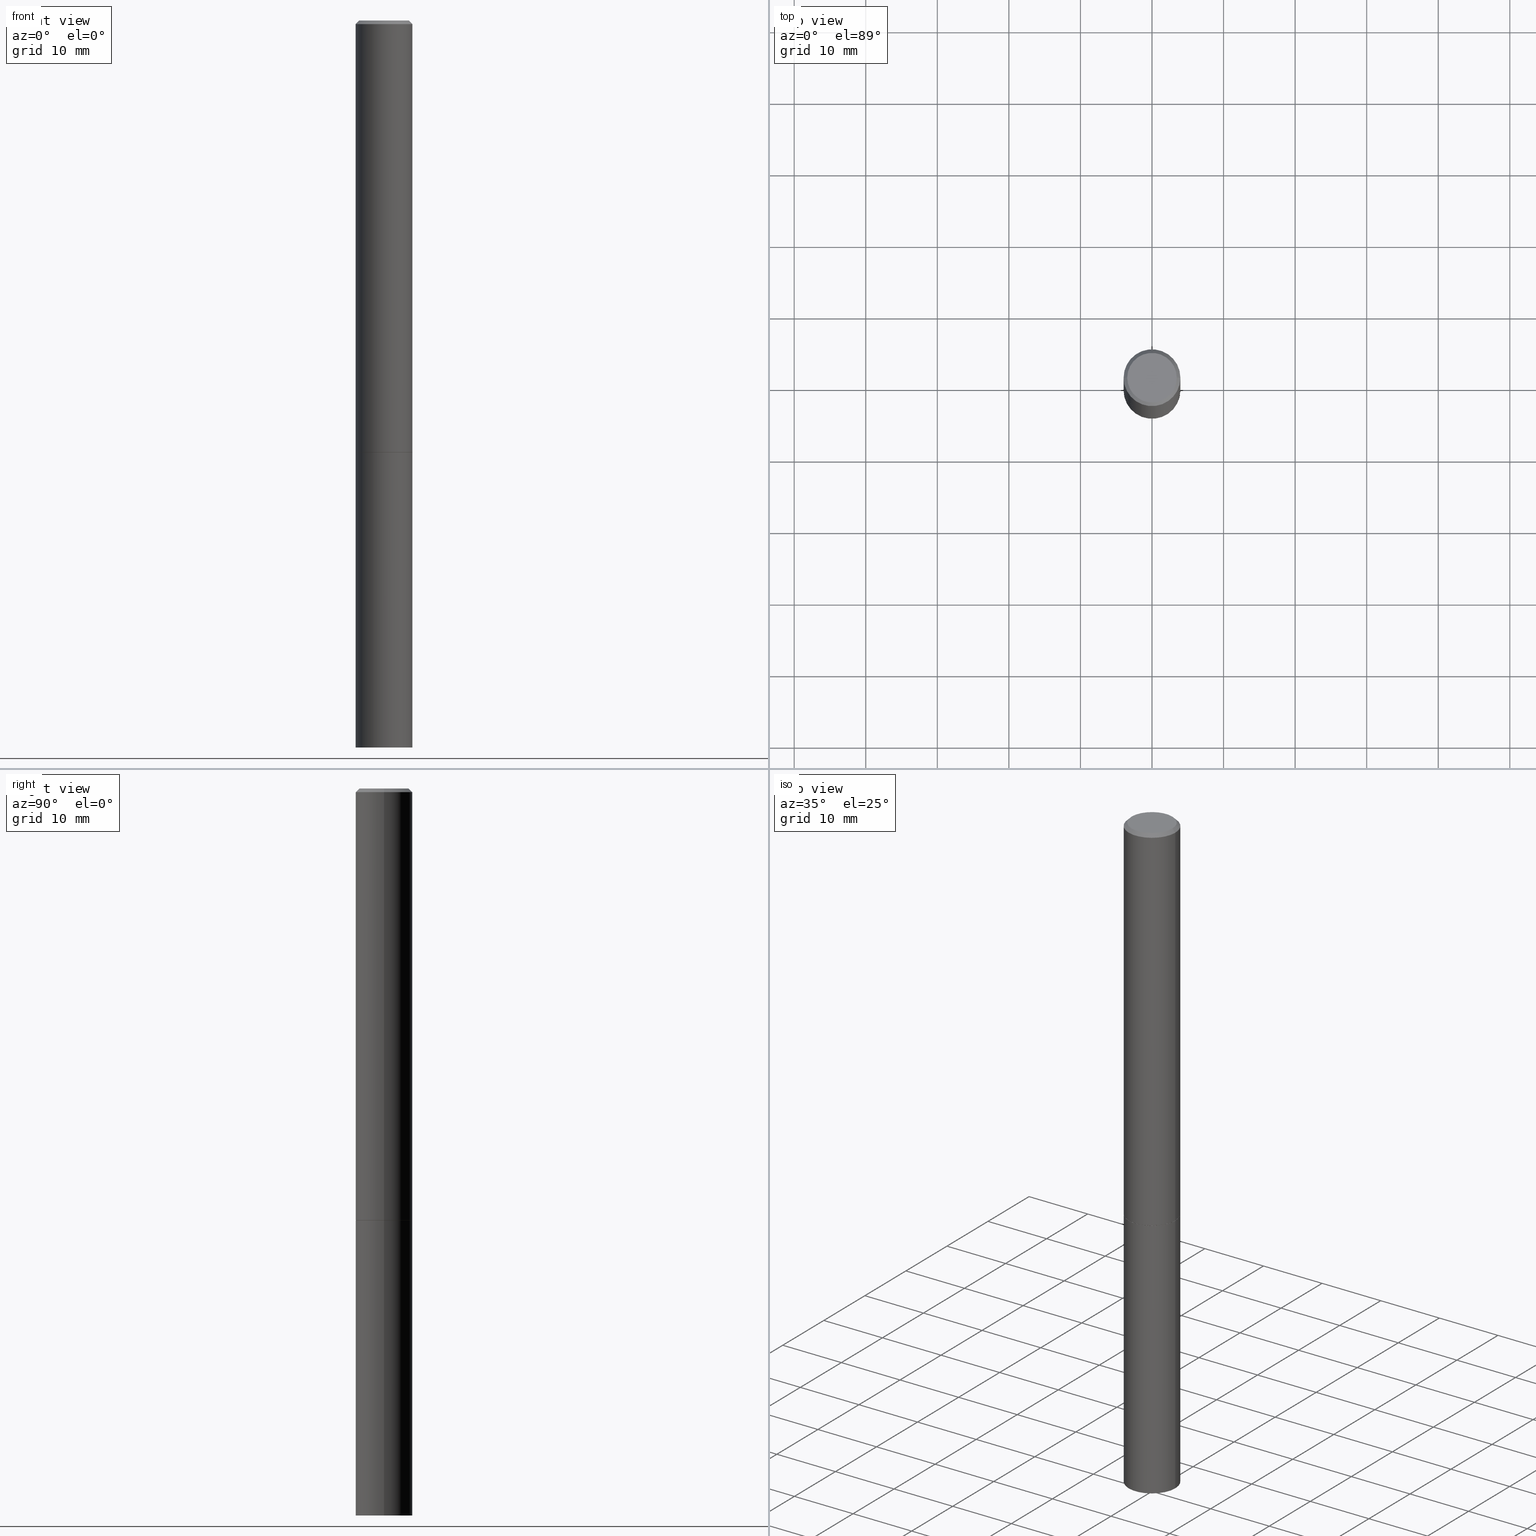
[diagram: canonical four-view strip — front | top / right | iso, engineering-drawing reading convention]
A machine part, canonical four-view strip (front | top / right | iso — engineering-drawing reading convention). The complete STEP part file that produces these views, byte-faithful:
ISO-10303-21;
HEADER;
FILE_DESCRIPTION (( 'STEP AP203' ),
    '1' );
FILE_NAME ('33125.STEP',
    '2023-03-21T20:39:28',
    ( '' ),
    ( '' ),
    'SwSTEP 2.0',
    'SolidWorks 2022',
    '' );
FILE_SCHEMA (( 'CONFIG_CONTROL_DESIGN' ));
ENDSEC;

DATA;
#1 = DIRECTION ( 'NONE',  ( 0.9986295347545742773, -7.033825938272001856E-15, -0.05233595624293820026 ) ) ;
#2 = CARTESIAN_POINT ( 'NONE',  ( 0.1562499999999996947, -1.141782438928662738E-15, -0.02000000000000003164 ) ) ;
#3 = PERSON_AND_ORGANIZATION_ROLE ( 'classification_officer' ) ;
#4 = AXIS2_PLACEMENT_3D ( 'NONE', #203, #104, #264 ) ;
#5 = ORIENTED_EDGE ( 'NONE', *, *, #388, .F. ) ;
#6 = COORDINATED_UNIVERSAL_TIME_OFFSET ( 5, 0, .BEHIND. ) ;
#7 = CARTESIAN_POINT ( 'NONE',  ( 0.1552499999999999991, -9.376373135463264066E-15, -2.375000000000000000 ) ) ;
#8 = DATE_TIME_ROLE ( 'creation_date' ) ;
#9 = ORIENTED_EDGE ( 'NONE', *, *, #179, .F. ) ;
#10 = DIRECTION ( 'NONE',  ( -2.445468806185136597E-29, 3.491481338843145583E-15, 1.000000000000000000 ) ) ;
#11 = DATE_TIME_ROLE ( 'classification_date' ) ;
#12 = AXIS2_PLACEMENT_3D ( 'NONE', #43, #97, #222 ) ;
#13 = CYLINDRICAL_SURFACE ( 'NONE', #211, 0.1562500000000000000 ) ;
#14 = EDGE_CURVE ( 'NONE', #378, #175, #366, .T. ) ;
#15 = ORIENTED_EDGE ( 'NONE', *, *, #219, .T. ) ;
#16 = DIRECTION ( 'NONE',  ( 1.000000000000000000, -6.982962677686266711E-15, 4.876176775795936353E-29 ) ) ;
#17 = PRODUCT ( '33125', '33125', '', ( #160 ) ) ;
#18 = CARTESIAN_POINT ( 'NONE',  ( 0.000000000000000000, 0.000000000000000000, 0.000000000000000000 ) ) ;
#19 = VECTOR ( 'NONE', #342, 39.37007874015748854 ) ;
#20 = ORIENTED_EDGE ( 'NONE', *, *, #301, .T. ) ;
#21 = CARTESIAN_POINT ( 'NONE',  ( 5.807988414689699417E-29, -8.292268179752470118E-15, -2.375000000000000000 ) ) ;
#22 = VECTOR ( 'NONE', #369, 39.37007874015748143 ) ;
#23 = AXIS2_PLACEMENT_3D ( 'NONE', #316, #41, #100 ) ;
#24 = EDGE_CURVE ( 'NONE', #290, #345, #389, .T. ) ;
#25 = DIRECTION ( 'NONE',  ( -0.9986295347545742773, 6.790662755453662155E-15, -0.05233595624293820026 ) ) ;
#26 = EDGE_LOOP ( 'NONE', ( #105, #107, #322 ) ) ;
#27 = LENGTH_MEASURE_WITH_UNIT ( LENGTH_MEASURE( 0.02539999999999999897 ), #181 );
#28 = DIRECTION ( 'NONE',  ( -2.445468806185136597E-29, 3.491481338843145583E-15, 1.000000000000000000 ) ) ;
#29 = LINE ( 'NONE', #7, #19 ) ;
#30 = VECTOR ( 'NONE', #1, 39.37007874015748854 ) ;
#31 = CARTESIAN_POINT ( 'NONE',  ( 1.060401494324985939E-27, -1.513972298380150215E-13, -43.36189002464450226 ) ) ;
#32 = MANIFOLD_SOLID_BREP ( 'Body-Move/Copy2[2]', #140 ) ;
#33 = ADVANCED_FACE ( 'NONE', ( #67 ), #225, .T. ) ;
#34 = DIRECTION ( 'NONE',  ( 1.000000000000000000, -6.982962677686262766E-15, 0.000000000000000000 ) ) ;
#35 = DIRECTION ( 'NONE',  ( 1.000000000000000000, -6.982962677686268288E-15, 0.000000000000000000 ) ) ;
#36 = APPLICATION_CONTEXT ( 'configuration controlled 3d designs of mechanical parts and assemblies' ) ;
#37 = APPROVAL_ROLE ( '' ) ;
#38 = ORIENTED_EDGE ( 'NONE', *, *, #214, .F. ) ;
#39 = DATE_AND_TIME ( #251, #361 ) ;
#40 = AXIS2_PLACEMENT_3D ( 'NONE', #31, #313, #91 ) ;
#41 = DIRECTION ( 'NONE',  ( 2.445468806185136597E-29, -3.491481338843145583E-15, -1.000000000000000000 ) ) ;
#42 = DIRECTION ( 'NONE',  ( 1.000000000000000000, 0.000000000000000000, 0.000000000000000000 ) ) ;
#43 = CARTESIAN_POINT ( 'NONE',  ( 0.000000000000000000, 0.000000000000000000, 0.000000000000000000 ) ) ;
#44 = CARTESIAN_POINT ( 'NONE',  ( 0.1562500000000000000, -9.379864616802105495E-15, -2.373999999999999666 ) ) ;
#45 = DIRECTION ( 'NONE',  ( -2.445468806185136597E-29, 3.491481338843145583E-15, 1.000000000000000000 ) ) ;
#46 = CONICAL_SURFACE ( 'NONE', #304, 0.1562499999999996947, 0.7853981633974473908 ) ;
#47 = VERTEX_POINT ( 'NONE', #224 ) ;
#48 = DIRECTION ( 'NONE',  ( 2.445468806185136597E-29, -3.491481338843145583E-15, -1.000000000000000000 ) ) ;
#49 = ADVANCED_FACE ( 'NONE', ( #348 ), #162, .F. ) ;
#50 = DIRECTION ( 'NONE',  ( 1.000000000000000000, -6.982962677686265922E-15, 4.876176775795935793E-29 ) ) ;
#51 = CC_DESIGN_PERSON_AND_ORGANIZATION_ASSIGNMENT ( #194, #350, ( #17 ) ) ;
#52 = DIRECTION ( 'NONE',  ( 1.000000000000000000, -6.982962677686262766E-15, 0.000000000000000000 ) ) ;
#53 = EDGE_CURVE ( 'NONE', #360, #208, #201, .T. ) ;
#54 = CONICAL_SURFACE ( 'NONE', #149, 751.2258538476485228, 1.518436449235072372 ) ;
#55 = VERTEX_POINT ( 'NONE', #124 ) ;
#56 = FACE_OUTER_BOUND ( 'NONE', #26, .T. ) ;
#57 = EDGE_LOOP ( 'NONE', ( #367, #336, #303, #262 ) ) ;
#58 = EDGE_CURVE ( 'NONE', #290, #137, #128, .T. ) ;
#59 = DIRECTION ( 'NONE',  ( -2.445468806185136877E-29, 3.491481338843145188E-15, 1.000000000000000000 ) ) ;
#60 = CARTESIAN_POINT ( 'NONE',  ( 0.000000000000000000, 0.000000000000000000, 0.000000000000000000 ) ) ;
#61 = ORIENTED_EDGE ( 'NONE', *, *, #154, .F. ) ;
#62 = EDGE_CURVE ( 'NONE', #175, #137, #186, .T. ) ;
#63 = DIRECTION ( 'NONE',  ( 1.000000000000000000, -6.982962677686268288E-15, 0.000000000000000000 ) ) ;
#64 = FACE_OUTER_BOUND ( 'NONE', #155, .T. ) ;
#65 = CALENDAR_DATE ( 2023, 21, 3 ) ;
#66 = PERSON_AND_ORGANIZATION ( #358, #151 ) ;
#67 = FACE_OUTER_BOUND ( 'NONE', #57, .T. ) ;
#68 = COORDINATED_UNIVERSAL_TIME_OFFSET ( 5, 0, .BEHIND. ) ;
#69 = CC_DESIGN_PERSON_AND_ORGANIZATION_ASSIGNMENT ( #282, #370, ( #311 ) ) ;
#70 =( GEOMETRIC_REPRESENTATION_CONTEXT ( 3 ) GLOBAL_UNCERTAINTY_ASSIGNED_CONTEXT ( ( #75 ) ) GLOBAL_UNIT_ASSIGNED_CONTEXT ( ( #148, #274, #275 ) ) REPRESENTATION_CONTEXT ( 'NONE', 'WORKASPACE' ) );
#71 = CYLINDRICAL_SURFACE ( 'NONE', #83, 0.1562499999999998612 ) ;
#72 = CALENDAR_DATE ( 2023, 21, 3 ) ;
#73 = ORIENTED_EDGE ( 'NONE', *, *, #184, .T. ) ;
#74 = CARTESIAN_POINT ( 'NONE',  ( 9.762530313242942040E-29, -1.393636032687536205E-14, -3.991811284487025713 ) ) ;
#75 = UNCERTAINTY_MEASURE_WITH_UNIT (LENGTH_MEASURE( 1.000000000000000082E-05 ), #148, 'distance_accuracy_value', 'NONE');
#76 = FACE_OUTER_BOUND ( 'NONE', #331, .T. ) ;
#77 = AXIS2_PLACEMENT_3D ( 'NONE', #390, #247, #339 ) ;
#78 = FACE_OUTER_BOUND ( 'NONE', #273, .T. ) ;
#79 = AXIS2_PLACEMENT_3D ( 'NONE', #153, #333, #63 ) ;
#80 = CC_DESIGN_PERSON_AND_ORGANIZATION_ASSIGNMENT ( #126, #317, ( #185 ) ) ;
#81 = CARTESIAN_POINT ( 'NONE',  ( 4.890937612370280165E-31, -6.982962677686301470E-17, -0.02000000000000003164 ) ) ;
#82 = DIRECTION ( 'NONE',  ( 2.438088387897960049E-29, -3.491481338843145188E-15, -1.000000000000000000 ) ) ;
#83 = AXIS2_PLACEMENT_3D ( 'NONE', #327, #325, #291 ) ;
#84 = APPROVAL_PERSON_ORGANIZATION ( #223, #292, #37 ) ;
#85 = DIRECTION ( 'NONE',  ( -1.000000000000000000, 6.982962677686265922E-15, -4.876176775795935793E-29 ) ) ;
#86 = ORIENTED_EDGE ( 'NONE', *, *, #326, .F. ) ;
#87 = ORIENTED_EDGE ( 'NONE', *, *, #334, .T. ) ;
#88 = CARTESIAN_POINT ( 'NONE',  ( 4.890937612370280165E-31, -6.982962677686301470E-17, -0.02000000000000003164 ) ) ;
#89 = DIRECTION ( 'NONE',  ( 1.000000000000000000, -6.982962677686266711E-15, 4.876176775795936353E-29 ) ) ;
#90 = VERTEX_POINT ( 'NONE', #346 ) ;
#91 = DIRECTION ( 'NONE',  ( -1.000000000000000000, 6.982962677686266711E-15, 0.000000000000000000 ) ) ;
#92 = EDGE_CURVE ( 'NONE', #228, #175, #29, .T. ) ;
#93 = CARTESIAN_POINT ( 'NONE',  ( 0.1562499999999998612, -1.091087918388478187E-15, 7.619026212181143371E-30 ) ) ;
#94 = CIRCLE ( 'NONE', #79, 0.1552499999999999991 ) ;
#95 = DATE_AND_TIME ( #65, #250 ) ;
#96 = SECURITY_CLASSIFICATION_LEVEL ( 'unclassified' ) ;
#97 = DIRECTION ( 'NONE',  ( -2.445468806185136597E-29, 3.491481338843145583E-15, 1.000000000000000000 ) ) ;
#98 = ADVANCED_FACE ( 'NONE', ( #64 ), #46, .T. ) ;
#99 = APPROVAL_DATE_TIME ( #372, #265 ) ;
#100 = DIRECTION ( 'NONE',  ( -1.000000000000000000, 6.982962677686267499E-15, 0.000000000000000000 ) ) ;
#101 = APPROVAL_ROLE ( '' ) ;
#102 = VECTOR ( 'NONE', #253, 39.37007874015748143 ) ;
#103 = EDGE_LOOP ( 'NONE', ( #73, #159, #9, #252 ) ) ;
#104 = DIRECTION ( 'NONE',  ( -2.445468806185136597E-29, 3.491481338843145583E-15, 1.000000000000000000 ) ) ;
#105 = ORIENTED_EDGE ( 'NONE', *, *, #375, .F. ) ;
#106 = DIRECTION ( 'NONE',  ( 1.000000000000000000, -6.982962677686266711E-15, 4.876176775795936353E-29 ) ) ;
#107 = ORIENTED_EDGE ( 'NONE', *, *, #326, .T. ) ;
#108 = DIRECTION ( 'NONE',  ( -0.7071067811865469066, 2.468850131082249961E-15, -0.7071067811865482389 ) ) ;
#109 = APPROVAL_PERSON_ORGANIZATION ( #258, #312, #101 ) ;
#110 = LINE ( 'NONE', #354, #377 ) ;
#111 = AXIS2_PLACEMENT_3D ( 'NONE', #298, #82, #85 ) ;
#112 = CYLINDRICAL_SURFACE ( 'NONE', #166, 0.1562500000000000000 ) ;
#113 = ORIENTED_EDGE ( 'NONE', *, *, #261, .T. ) ;
#114 = CARTESIAN_POINT ( 'NONE',  ( 9.781875224740546387E-29, -1.396592535537258233E-14, -4.000000000000000000 ) ) ;
#115 = ORIENTED_EDGE ( 'NONE', *, *, #179, .T. ) ;
#116 = APPLICATION_PROTOCOL_DEFINITION ( 'international standard', 'config_control_design', 1994, #191 ) ;
#117 = ADVANCED_FACE ( 'NONE', ( #230 ), #54, .F. ) ;
#118 = AXIS2_PLACEMENT_3D ( 'NONE', #386, #198, #263 ) ;
#119 = ADVANCED_FACE ( 'NONE', ( #199 ), #112, .T. ) ;
#120 = VECTOR ( 'NONE', #59, 39.37007874015748143 ) ;
#121 = FACE_OUTER_BOUND ( 'NONE', #306, .T. ) ;
#122 = CC_DESIGN_DATE_AND_TIME_ASSIGNMENT ( #193, #11, ( #257 ) ) ;
#123 = DIRECTION ( 'NONE',  ( 1.000000000000000000, -6.982962677686262766E-15, 0.000000000000000000 ) ) ;
#124 = CARTESIAN_POINT ( 'NONE',  ( -0.1562500000000000000, -1.001887374293736968E-14, -2.375000000000000000 ) ) ;
#125 = CIRCLE ( 'NONE', #156, 0.1562499999999996947 ) ;
#126 = PERSON_AND_ORGANIZATION ( #358, #151 ) ;
#127 = EDGE_LOOP ( 'NONE', ( #5, #174, #387, #173 ) ) ;
#128 = LINE ( 'NONE', #2, #22 ) ;
#129 = ADVANCED_FACE ( 'NONE', ( #76 ), #294, .F. ) ;
#130 = PERSON_AND_ORGANIZATION ( #358, #151 ) ;
#131 = COORDINATED_UNIVERSAL_TIME_OFFSET ( 5, 0, .BEHIND. ) ;
#132 = ORIENTED_EDGE ( 'NONE', *, *, #24, .F. ) ;
#133 = DIRECTION ( 'NONE',  ( -2.445468806185136597E-29, 3.491481338843145583E-15, 1.000000000000000000 ) ) ;
#134 = AXIS2_PLACEMENT_3D ( 'NONE', #81, #170, #353 ) ;
#135 = CONICAL_SURFACE ( 'NONE', #324, 0.1552499999999999991, 0.7853981633974141952 ) ;
#136 = FACE_OUTER_BOUND ( 'NONE', #164, .T. ) ;
#137 = VERTEX_POINT ( 'NONE', #256 ) ;
#138 = CARTESIAN_POINT ( 'NONE',  ( 5.805542945883513814E-29, -8.288776698413627111E-15, -2.373999999999999666 ) ) ;
#139 = DIRECTION ( 'NONE',  ( -0.7071067811865232589, 7.493145998870265808E-15, 0.7071067811865715536 ) ) ;
#140 = CLOSED_SHELL ( 'NONE', ( #320, #145, #98, #33, #161, #245, #129, #150 ) ) ;
#141 = VERTEX_POINT ( 'NONE', #165 ) ;
#142 = ORIENTED_EDGE ( 'NONE', *, *, #154, .T. ) ;
#143 = CARTESIAN_POINT ( 'NONE',  ( 9.514286648347515911E-16, 0.1362499999999997047, -4.757143324173775705E-16 ) ) ;
#144 = VECTOR ( 'NONE', #25, 39.37007874015748854 ) ;
#145 = ADVANCED_FACE ( 'NONE', ( #284 ), #237, .T. ) ;
#146 = CARTESIAN_POINT ( 'NONE',  ( -0.1562500000000000000, -3.069080137970085114E-15, -2.373999999999999666 ) ) ;
#147 = ORIENTED_EDGE ( 'NONE', *, *, #169, .F. ) ;
#148 =( CONVERSION_BASED_UNIT ( 'INCH', #27 ) LENGTH_UNIT ( ) NAMED_UNIT ( #302 ) );
#149 = AXIS2_PLACEMENT_3D ( 'NONE', #163, #48, #323 ) ;
#150 = ADVANCED_FACE ( 'NONE', ( #321 ), #234, .F. ) ;
#151 = ORGANIZATION ( 'UNSPECIFIED', 'UNSPECIFIED', '' ) ;
#152 = DIRECTION ( 'NONE',  ( -2.445468806185136597E-29, 3.491481338843145583E-15, 1.000000000000000000 ) ) ;
#153 = CARTESIAN_POINT ( 'NONE',  ( 5.807988414689699417E-29, -8.292268179752470118E-15, -2.375000000000000000 ) ) ;
#154 = EDGE_CURVE ( 'NONE', #47, #378, #110, .T. ) ;
#155 = EDGE_LOOP ( 'NONE', ( #132, #269, #115, #197 ) ) ;
#156 = AXIS2_PLACEMENT_3D ( 'NONE', #88, #305, #210 ) ;
#157 = PERSON_AND_ORGANIZATION ( #358, #151 ) ;
#158 = CC_DESIGN_PERSON_AND_ORGANIZATION_ASSIGNMENT ( #157, #3, ( #257 ) ) ;
#159 = ORIENTED_EDGE ( 'NONE', *, *, #388, .T. ) ;
#160 = MECHANICAL_CONTEXT ( 'NONE', #191, 'mechanical' ) ;
#161 = ADVANCED_FACE ( 'NONE', ( #379 ), #71, .T. ) ;
#162 = PLANE ( 'NONE',  #111 ) ;
#163 = CARTESIAN_POINT ( 'NONE',  ( 1.060401494324985939E-27, -1.513972298380150215E-13, -43.36189002464450226 ) ) ;
#164 = EDGE_LOOP ( 'NONE', ( #61, #87, #286, #213 ) ) ;
#165 = CARTESIAN_POINT ( 'NONE',  ( 0.1562500000000000000, -9.383356098140948502E-15, -2.375000000000000000 ) ) ;
#166 = AXIS2_PLACEMENT_3D ( 'NONE', #382, #168, #106 ) ;
#167 = VERTEX_POINT ( 'NONE', #74 ) ;
#168 = DIRECTION ( 'NONE',  ( -2.445468806185136597E-29, 3.491481338843145583E-15, 1.000000000000000000 ) ) ;
#169 = EDGE_CURVE ( 'NONE', #208, #55, #357, .T. ) ;
#170 = DIRECTION ( 'NONE',  ( -2.445468806185136597E-29, 3.491481338843145583E-15, 1.000000000000000000 ) ) ;
#171 = DIRECTION ( 'NONE',  ( 2.438088387897960049E-29, -3.491481338843145188E-15, -1.000000000000000000 ) ) ;
#172 = CC_DESIGN_APPROVAL ( #265, ( #311 ) ) ;
#173 = ORIENTED_EDGE ( 'NONE', *, *, #296, .F. ) ;
#174 = ORIENTED_EDGE ( 'NONE', *, *, #14, .T. ) ;
#175 = VERTEX_POINT ( 'NONE', #44 ) ;
#176 = PRODUCT_RELATED_PRODUCT_CATEGORY ( 'detail', '', ( #17 ) ) ;
#177 = LINE ( 'NONE', #240, #144 ) ;
#178 = CIRCLE ( 'NONE', #356, 0.1562500000000000000 ) ;
#179 = EDGE_CURVE ( 'NONE', #137, #90, #295, .T. ) ;
#180 = ORIENTED_EDGE ( 'NONE', *, *, #92, .F. ) ;
#181 =( LENGTH_UNIT ( ) NAMED_UNIT ( * ) SI_UNIT ( $, .METRE. ) );
#182 = ORIENTED_EDGE ( 'NONE', *, *, #385, .T. ) ;
#183 = CARTESIAN_POINT ( 'NONE',  ( -0.1362499999999997047, 9.863434782231830429E-16, -6.775751096333125871E-30 ) ) ;
#184 = EDGE_CURVE ( 'NONE', #175, #378, #249, .T. ) ;
#185 = PRODUCT_DEFINITION ( 'UNKNOWN', '', #311, #233 ) ;
#186 = LINE ( 'NONE', #93, #102 ) ;
#187 = DIRECTION ( 'NONE',  ( 1.000000000000000000, -6.982962677686262766E-15, 0.000000000000000000 ) ) ;
#188 = CARTESIAN_POINT ( 'NONE',  ( 9.742810946720133683E-19, -1.393733460796993625E-14, -3.991811284487025713 ) ) ;
#189 = ADVANCED_BREP_SHAPE_REPRESENTATION ( '33125', ( #299, #32, #242 ), #70 ) ;
#190 = VECTOR ( 'NONE', #108, 39.37007874015748143 ) ;
#191 = APPLICATION_CONTEXT ( 'configuration controlled 3d designs of mechanical parts and assemblies' ) ;
#192 = CARTESIAN_POINT ( 'NONE',  ( 0.1562499999999997224, -1.503787816752438098E-14, -4.000000000000000000 ) ) ;
#193 = DATE_AND_TIME ( #196, #277 ) ;
#194 = PERSON_AND_ORGANIZATION ( #358, #151 ) ;
#195 = ORIENTED_EDGE ( 'NONE', *, *, #385, .F. ) ;
#196 = CALENDAR_DATE ( 2023, 21, 3 ) ;
#197 = ORIENTED_EDGE ( 'NONE', *, *, #238, .F. ) ;
#198 = DIRECTION ( 'NONE',  ( -2.445468806185136597E-29, 3.491481338843145583E-15, 1.000000000000000000 ) ) ;
#199 = FACE_OUTER_BOUND ( 'NONE', #283, .T. ) ;
#200 = LINE ( 'NONE', #384, #190 ) ;
#201 = CIRCLE ( 'NONE', #205, 0.1562500000000000000 ) ;
#202 = CC_DESIGN_APPROVAL ( #292, ( #257 ) ) ;
#203 = CARTESIAN_POINT ( 'NONE',  ( 5.807988414689699417E-29, -8.292268179752470118E-15, -2.375000000000000000 ) ) ;
#204 = DIRECTION ( 'NONE',  ( -1.000000000000000000, 6.982962677686267499E-15, 0.000000000000000000 ) ) ;
#205 = AXIS2_PLACEMENT_3D ( 'NONE', #114, #307, #34 ) ;
#206 = ORIENTED_EDGE ( 'NONE', *, *, #334, .F. ) ;
#207 = CC_DESIGN_DATE_AND_TIME_ASSIGNMENT ( #39, #8, ( #185 ) ) ;
#208 = VERTEX_POINT ( 'NONE', #383 ) ;
#209 = ORIENTED_EDGE ( 'NONE', *, *, #169, .T. ) ;
#210 = DIRECTION ( 'NONE',  ( 1.000000000000000000, -6.982962677686267499E-15, 0.000000000000000000 ) ) ;
#211 = AXIS2_PLACEMENT_3D ( 'NONE', #259, #152, #89 ) ;
#212 = CC_DESIGN_APPROVAL ( #312, ( #185 ) ) ;
#213 = ORIENTED_EDGE ( 'NONE', *, *, #14, .F. ) ;
#214 = EDGE_CURVE ( 'NONE', #141, #55, #359, .T. ) ;
#215 = DIRECTION ( 'NONE',  ( 1.000000000000000000, -6.982962677686266711E-15, 4.876176775795936353E-29 ) ) ;
#216 = ORIENTED_EDGE ( 'NONE', *, *, #260, .T. ) ;
#217 = DIRECTION ( 'NONE',  ( -2.445468806185136877E-29, 3.491481338843145188E-15, 1.000000000000000000 ) ) ;
#218 = DIRECTION ( 'NONE',  ( -2.445468806185136597E-29, 3.491481338843145583E-15, 1.000000000000000000 ) ) ;
#219 = EDGE_CURVE ( 'NONE', #228, #47, #340, .T. ) ;
#220 = SHAPE_DEFINITION_REPRESENTATION ( #352, #189 ) ;
#221 = APPROVAL_ROLE ( '' ) ;
#222 = DIRECTION ( 'NONE',  ( 1.000000000000000000, -6.982962677686266711E-15, 4.876176775795936353E-29 ) ) ;
#223 = PERSON_AND_ORGANIZATION ( #358, #151 ) ;
#224 = CARTESIAN_POINT ( 'NONE',  ( -0.1552499999999999991, -7.183852128136692972E-15, -2.375000000000000000 ) ) ;
#225 = CONICAL_SURFACE ( 'NONE', #23, 0.1562499999999996947, 0.7853981633974473908 ) ;
#226 = ORIENTED_EDGE ( 'NONE', *, *, #24, .T. ) ;
#227 = DIRECTION ( 'NONE',  ( -1.000000000000000000, 6.982962677686265922E-15, -4.876176775795935793E-29 ) ) ;
#228 = VERTEX_POINT ( 'NONE', #319 ) ;
#229 = DIRECTION ( 'NONE',  ( -2.438088387897960049E-29, 3.491481338843145188E-15, 1.000000000000000000 ) ) ;
#230 = FACE_OUTER_BOUND ( 'NONE', #363, .T. ) ;
#231 = AXIS2_PLACEMENT_3D ( 'NONE', #351, #45, #287 ) ;
#232 = LOCAL_TIME ( 16, 39, 28.00000000000000000, #131 ) ;
#233 = DESIGN_CONTEXT ( 'detailed design', #36, 'design' ) ;
#234 = PLANE ( 'NONE',  #241 ) ;
#235 = ORIENTED_EDGE ( 'NONE', *, *, #301, .F. ) ;
#236 = CIRCLE ( 'NONE', #272, 0.1362499999999997047 ) ;
#237 = CYLINDRICAL_SURFACE ( 'NONE', #266, 0.1562499999999998612 ) ;
#238 = EDGE_CURVE ( 'NONE', #345, #90, #200, .T. ) ;
#239 = ORIENTED_EDGE ( 'NONE', *, *, #214, .T. ) ;
#240 = CARTESIAN_POINT ( 'NONE',  ( -9.742810944767764572E-19, -1.393733460796993625E-14, -3.991811284487025713 ) ) ;
#241 = AXIS2_PLACEMENT_3D ( 'NONE', #143, #171, #227 ) ;
#242 = AXIS2_PLACEMENT_3D ( 'NONE', #60, #380, #42 ) ;
#243 = EDGE_LOOP ( 'NONE', ( #239, #20 ) ) ;
#244 = LINE ( 'NONE', #188, #30 ) ;
#245 = ADVANCED_FACE ( 'NONE', ( #136 ), #355, .T. ) ;
#246 = ADVANCED_FACE ( 'NONE', ( #78 ), #13, .T. ) ;
#247 = DIRECTION ( 'NONE',  ( -2.445468806185136597E-29, 3.491481338843145583E-15, 1.000000000000000000 ) ) ;
#248 = PERSON_AND_ORGANIZATION_ROLE ( 'creator' ) ;
#249 = CIRCLE ( 'NONE', #270, 0.1562500000000000000 ) ;
#250 = LOCAL_TIME ( 16, 39, 28.00000000000000000, #6 ) ;
#251 = CALENDAR_DATE ( 2023, 21, 3 ) ;
#252 = ORIENTED_EDGE ( 'NONE', *, *, #62, .F. ) ;
#253 = DIRECTION ( 'NONE',  ( -2.445468806185136877E-29, 3.491481338843145188E-15, 1.000000000000000000 ) ) ;
#254 = APPROVAL_STATUS ( 'not_yet_approved' ) ;
#255 = DIRECTION ( 'NONE',  ( 2.445468806185136597E-29, -3.491481338843145583E-15, -1.000000000000000000 ) ) ;
#256 = CARTESIAN_POINT ( 'NONE',  ( 0.1562499999999996947, -1.141782438928662738E-15, -0.02000000000000003164 ) ) ;
#257 = SECURITY_CLASSIFICATION ( '', '', #96 ) ;
#258 = PERSON_AND_ORGANIZATION ( #358, #151 ) ;
#259 = CARTESIAN_POINT ( 'NONE',  ( 0.000000000000000000, 0.000000000000000000, 0.000000000000000000 ) ) ;
#260 = EDGE_CURVE ( 'NONE', #360, #141, #309, .T. ) ;
#261 = EDGE_CURVE ( 'NONE', #345, #290, #236, .T. ) ;
#262 = ORIENTED_EDGE ( 'NONE', *, *, #296, .T. ) ;
#263 = DIRECTION ( 'NONE',  ( 1.000000000000000000, -6.982962677686262766E-15, 0.000000000000000000 ) ) ;
#264 = DIRECTION ( 'NONE',  ( 1.000000000000000000, -6.982962677686268288E-15, 0.000000000000000000 ) ) ;
#265 = APPROVAL ( #254, 'UNSPECIFIED' ) ;
#266 = AXIS2_PLACEMENT_3D ( 'NONE', #18, #10, #16 ) ;
#267 = CC_DESIGN_SECURITY_CLASSIFICATION ( #257, ( #311 ) ) ;
#268 = ORIENTED_EDGE ( 'NONE', *, *, #219, .F. ) ;
#269 = ORIENTED_EDGE ( 'NONE', *, *, #58, .T. ) ;
#270 = AXIS2_PLACEMENT_3D ( 'NONE', #138, #133, #52 ) ;
#271 = DIRECTION ( 'NONE',  ( -2.445468806185136877E-29, 3.491481338843145188E-15, 1.000000000000000000 ) ) ;
#272 = AXIS2_PLACEMENT_3D ( 'NONE', #330, #218, #215 ) ;
#273 = EDGE_LOOP ( 'NONE', ( #147, #182, #216, #235 ) ) ;
#274 =( NAMED_UNIT ( * ) PLANE_ANGLE_UNIT ( ) SI_UNIT ( $, .RADIAN. ) );
#275 =( NAMED_UNIT ( * ) SI_UNIT ( $, .STERADIAN. ) SOLID_ANGLE_UNIT ( ) );
#276 = AXIS2_PLACEMENT_3D ( 'NONE', #21, #229, #50 ) ;
#277 = LOCAL_TIME ( 16, 39, 28.00000000000000000, #373 ) ;
#278 = DIRECTION ( 'NONE',  ( -2.445468806185136597E-29, 3.491481338843145583E-15, 1.000000000000000000 ) ) ;
#279 = CARTESIAN_POINT ( 'NONE',  ( 4.890937612370280165E-31, -6.982962677686301470E-17, -0.02000000000000003164 ) ) ;
#280 = APPROVAL_DATE_TIME ( #95, #312 ) ;
#281 = VECTOR ( 'NONE', #217, 39.37007874015748143 ) ;
#282 = PERSON_AND_ORGANIZATION ( #358, #151 ) ;
#283 = EDGE_LOOP ( 'NONE', ( #297, #209, #38, #329 ) ) ;
#284 = FACE_OUTER_BOUND ( 'NONE', #103, .T. ) ;
#285 = CALENDAR_DATE ( 2023, 21, 3 ) ;
#286 = ORIENTED_EDGE ( 'NONE', *, *, #92, .T. ) ;
#287 = DIRECTION ( 'NONE',  ( 1.000000000000000000, -6.982962677686268288E-15, 0.000000000000000000 ) ) ;
#288 = CLOSED_SHELL ( 'NONE', ( #119, #117, #300, #246, #49 ) ) ;
#289 = LOCAL_TIME ( 16, 39, 28.00000000000000000, #315 ) ;
#290 = VERTEX_POINT ( 'NONE', #368 ) ;
#291 = DIRECTION ( 'NONE',  ( 1.000000000000000000, -6.982962677686266711E-15, 4.876176775795936353E-29 ) ) ;
#292 = APPROVAL ( #347, 'UNSPECIFIED' ) ;
#293 = CARTESIAN_POINT ( 'NONE',  ( -0.1562500000000000000, 1.110223024625156540E-15, -7.685836078523291160E-30 ) ) ;
#294 = PLANE ( 'NONE',  #276 ) ;
#295 = CIRCLE ( 'NONE', #134, 0.1562499999999996947 ) ;
#296 = EDGE_CURVE ( 'NONE', #90, #137, #125, .T. ) ;
#297 = ORIENTED_EDGE ( 'NONE', *, *, #53, .T. ) ;
#298 = CARTESIAN_POINT ( 'NONE',  ( 1.091087918388537155E-15, 0.1562499999999917011, -2.375000000000000444 ) ) ;
#299 = MANIFOLD_SOLID_BREP ( 'Body-Move/Copy2[1]', #288 ) ;
#300 = ADVANCED_FACE ( 'NONE', ( #56 ), #332, .F. ) ;
#301 = EDGE_CURVE ( 'NONE', #55, #141, #349, .T. ) ;
#302 = DIMENSIONAL_EXPONENTS ( 1.000000000000000000, 0.000000000000000000, 0.000000000000000000, 0.000000000000000000, 0.000000000000000000, 0.000000000000000000, 0.000000000000000000 ) ;
#303 = ORIENTED_EDGE ( 'NONE', *, *, #238, .T. ) ;
#304 = AXIS2_PLACEMENT_3D ( 'NONE', #279, #255, #204 ) ;
#305 = DIRECTION ( 'NONE',  ( -2.445468806185136597E-29, 3.491481338843145583E-15, 1.000000000000000000 ) ) ;
#306 = EDGE_LOOP ( 'NONE', ( #15, #142, #365, #180 ) ) ;
#307 = DIRECTION ( 'NONE',  ( -2.445468806185136597E-29, 3.491481338843145583E-15, 1.000000000000000000 ) ) ;
#308 = CARTESIAN_POINT ( 'NONE',  ( 5.807988414689699417E-29, -8.292268179752470118E-15, -2.375000000000000000 ) ) ;
#309 = LINE ( 'NONE', #362, #281 ) ;
#310 = VECTOR ( 'NONE', #271, 39.37007874015748143 ) ;
#311 = PRODUCT_DEFINITION_FORMATION_WITH_SPECIFIED_SOURCE ( 'ANY', '', #17, .NOT_KNOWN. ) ;
#312 = APPROVAL ( #343, 'UNSPECIFIED' ) ;
#313 = DIRECTION ( 'NONE',  ( 2.445468806185136597E-29, -3.491481338843145583E-15, -1.000000000000000000 ) ) ;
#314 = APPROVAL_DATE_TIME ( #376, #292 ) ;
#315 = COORDINATED_UNIVERSAL_TIME_OFFSET ( 5, 0, .BEHIND. ) ;
#316 = CARTESIAN_POINT ( 'NONE',  ( 4.890937612370280165E-31, -6.982962677686301470E-17, -0.02000000000000003164 ) ) ;
#317 = PERSON_AND_ORGANIZATION_ROLE ( 'creator' ) ;
#318 = CARTESIAN_POINT ( 'NONE',  ( 5.805542945883513814E-29, -8.288776698413627111E-15, -2.373999999999999666 ) ) ;
#319 = CARTESIAN_POINT ( 'NONE',  ( 0.1552499999999999991, -9.376373135463264066E-15, -2.375000000000000000 ) ) ;
#320 = ADVANCED_FACE ( 'NONE', ( #121 ), #135, .T. ) ;
#321 = FACE_OUTER_BOUND ( 'NONE', #328, .T. ) ;
#322 = ORIENTED_EDGE ( 'NONE', *, *, #53, .F. ) ;
#323 = DIRECTION ( 'NONE',  ( -1.000000000000000000, 6.982962677686266711E-15, 0.000000000000000000 ) ) ;
#324 = AXIS2_PLACEMENT_3D ( 'NONE', #308, #28, #35 ) ;
#325 = DIRECTION ( 'NONE',  ( -2.445468806185136597E-29, 3.491481338843145583E-15, 1.000000000000000000 ) ) ;
#326 = EDGE_CURVE ( 'NONE', #167, #208, #177, .T. ) ;
#327 = CARTESIAN_POINT ( 'NONE',  ( 0.000000000000000000, 0.000000000000000000, 0.000000000000000000 ) ) ;
#328 = EDGE_LOOP ( 'NONE', ( #113, #226 ) ) ;
#329 = ORIENTED_EDGE ( 'NONE', *, *, #260, .F. ) ;
#330 = CARTESIAN_POINT ( 'NONE',  ( 0.000000000000000000, 0.000000000000000000, 0.000000000000000000 ) ) ;
#331 = EDGE_LOOP ( 'NONE', ( #268, #206 ) ) ;
#332 = CONICAL_SURFACE ( 'NONE', #40, 751.2258538476485228, 1.518436449235072372 ) ;
#333 = DIRECTION ( 'NONE',  ( -2.445468806185136597E-29, 3.491481338843145583E-15, 1.000000000000000000 ) ) ;
#334 = EDGE_CURVE ( 'NONE', #47, #228, #94, .T. ) ;
#335 = LINE ( 'NONE', #337, #120 ) ;
#336 = ORIENTED_EDGE ( 'NONE', *, *, #261, .F. ) ;
#337 = CARTESIAN_POINT ( 'NONE',  ( -0.1562499999999998612, 1.110223024625155554E-15, -7.685836078523284153E-30 ) ) ;
#338 = CC_DESIGN_PERSON_AND_ORGANIZATION_ASSIGNMENT ( #66, #248, ( #311 ) ) ;
#339 = DIRECTION ( 'NONE',  ( 1.000000000000000000, -6.982962677686262766E-15, 0.000000000000000000 ) ) ;
#340 = CIRCLE ( 'NONE', #4, 0.1552499999999999991 ) ;
#341 = APPROVAL_PERSON_ORGANIZATION ( #130, #265, #221 ) ;
#342 = DIRECTION ( 'NONE',  ( 0.7071067811865232589, -2.468850131082003836E-15, 0.7071067811865715536 ) ) ;
#343 = APPROVAL_STATUS ( 'not_yet_approved' ) ;
#344 = APPLICATION_PROTOCOL_DEFINITION ( 'international standard', 'config_control_design', 1994, #36 ) ;
#345 = VERTEX_POINT ( 'NONE', #183 ) ;
#346 = CARTESIAN_POINT ( 'NONE',  ( -0.1562499999999996947, 1.021258291611614100E-15, -0.02000000000000003164 ) ) ;
#347 = APPROVAL_STATUS ( 'not_yet_approved' ) ;
#348 = FACE_OUTER_BOUND ( 'NONE', #243, .T. ) ;
#349 = CIRCLE ( 'NONE', #77, 0.1562500000000000000 ) ;
#350 = PERSON_AND_ORGANIZATION_ROLE ( 'design_owner' ) ;
#351 = CARTESIAN_POINT ( 'NONE',  ( 5.807988414689699417E-29, -8.292268179752470118E-15, -2.375000000000000000 ) ) ;
#352 = PRODUCT_DEFINITION_SHAPE ( 'NONE', 'NONE',  #185 ) ;
#353 = DIRECTION ( 'NONE',  ( 1.000000000000000000, -6.982962677686267499E-15, 0.000000000000000000 ) ) ;
#354 = CARTESIAN_POINT ( 'NONE',  ( -0.1552499999999999991, -7.189150582484915374E-15, -2.375000000000000000 ) ) ;
#355 = CONICAL_SURFACE ( 'NONE', #231, 0.1552499999999999991, 0.7853981633974141952 ) ;
#356 = AXIS2_PLACEMENT_3D ( 'NONE', #364, #278, #123 ) ;
#357 = LINE ( 'NONE', #293, #310 ) ;
#358 = PERSON ( 'UNSPECIFIED', 'UNSPECIFIED', 'UNSPECIFIED', ('UNSPECIFIED'), ('UNSPECIFIED'), ('UNSPECIFIED') ) ;
#359 = CIRCLE ( 'NONE', #118, 0.1562500000000000000 ) ;
#360 = VERTEX_POINT ( 'NONE', #192 ) ;
#361 = LOCAL_TIME ( 16, 39, 28.00000000000000000, #68 ) ;
#362 = CARTESIAN_POINT ( 'NONE',  ( 0.1562500000000000000, -1.091087918388479174E-15, 7.619026212181150377E-30 ) ) ;
#363 = EDGE_LOOP ( 'NONE', ( #86, #381, #195 ) ) ;
#364 = CARTESIAN_POINT ( 'NONE',  ( 9.781875224740546387E-29, -1.396592535537258233E-14, -4.000000000000000000 ) ) ;
#365 = ORIENTED_EDGE ( 'NONE', *, *, #184, .F. ) ;
#366 = CIRCLE ( 'NONE', #371, 0.1562500000000000000 ) ;
#367 = ORIENTED_EDGE ( 'NONE', *, *, #58, .F. ) ;
#368 = CARTESIAN_POINT ( 'NONE',  ( 0.1362499999999997047, -1.038262645562515955E-15, 6.957025900226681062E-30 ) ) ;
#369 = DIRECTION ( 'NONE',  ( 0.7071067811865469066, -7.319954787623254468E-15, -0.7071067811865482389 ) ) ;
#370 = PERSON_AND_ORGANIZATION_ROLE ( 'design_supplier' ) ;
#371 = AXIS2_PLACEMENT_3D ( 'NONE', #318, #374, #187 ) ;
#372 = DATE_AND_TIME ( #285, #289 ) ;
#373 = COORDINATED_UNIVERSAL_TIME_OFFSET ( 5, 0, .BEHIND. ) ;
#374 = DIRECTION ( 'NONE',  ( -2.445468806185136597E-29, 3.491481338843145583E-15, 1.000000000000000000 ) ) ;
#375 = EDGE_CURVE ( 'NONE', #167, #360, #244, .T. ) ;
#376 = DATE_AND_TIME ( #72, #232 ) ;
#377 = VECTOR ( 'NONE', #139, 39.37007874015748854 ) ;
#378 = VERTEX_POINT ( 'NONE', #146 ) ;
#379 = FACE_OUTER_BOUND ( 'NONE', #127, .T. ) ;
#380 = DIRECTION ( 'NONE',  ( 0.000000000000000000, 0.000000000000000000, 1.000000000000000000 ) ) ;
#381 = ORIENTED_EDGE ( 'NONE', *, *, #375, .T. ) ;
#382 = CARTESIAN_POINT ( 'NONE',  ( 0.000000000000000000, 0.000000000000000000, 0.000000000000000000 ) ) ;
#383 = CARTESIAN_POINT ( 'NONE',  ( -0.1562499999999997224, -1.287483743698410395E-14, -4.000000000000000000 ) ) ;
#384 = CARTESIAN_POINT ( 'NONE',  ( -0.1562499999999996947, 1.021258291611614100E-15, -0.02000000000000003164 ) ) ;
#385 = EDGE_CURVE ( 'NONE', #208, #360, #178, .T. ) ;
#386 = CARTESIAN_POINT ( 'NONE',  ( 5.807988414689699417E-29, -8.292268179752470118E-15, -2.375000000000000000 ) ) ;
#387 = ORIENTED_EDGE ( 'NONE', *, *, #62, .T. ) ;
#388 = EDGE_CURVE ( 'NONE', #378, #90, #335, .T. ) ;
#389 = CIRCLE ( 'NONE', #12, 0.1362499999999997047 ) ;
#390 = CARTESIAN_POINT ( 'NONE',  ( 5.807988414689699417E-29, -8.292268179752470118E-15, -2.375000000000000000 ) ) ;
ENDSEC;
END-ISO-10303-21;
